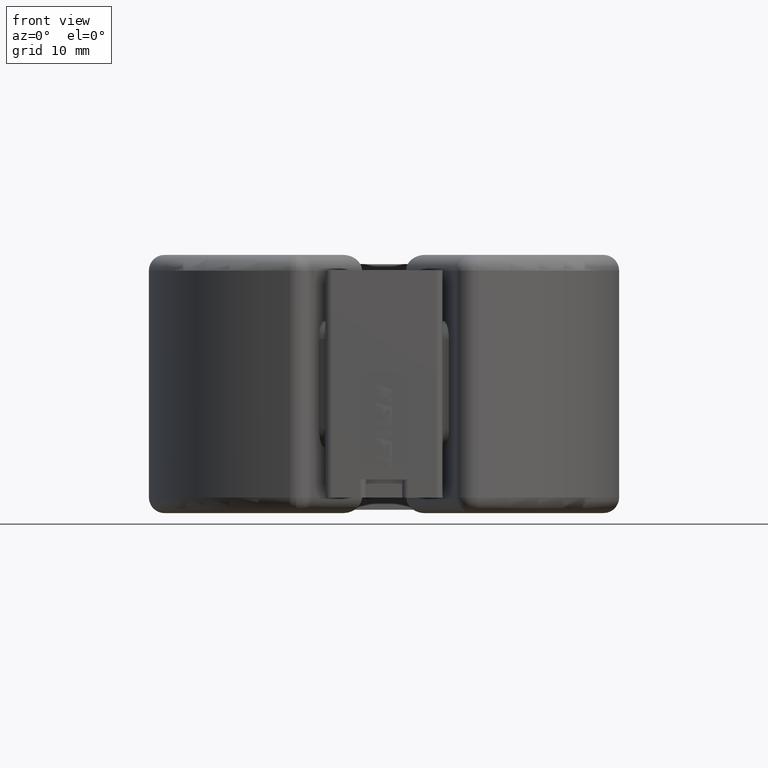
[diagram: clean part render]
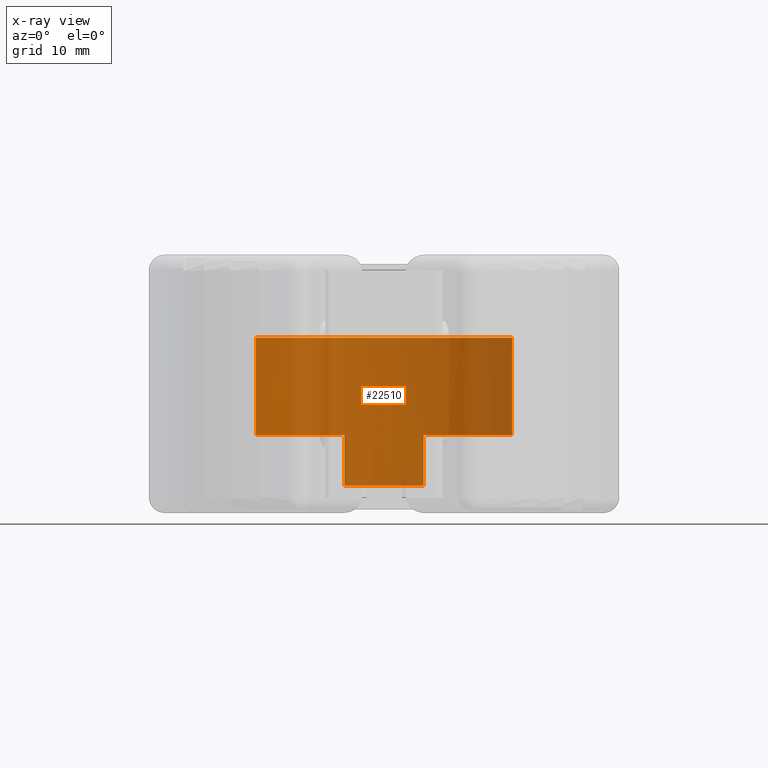
[diagram: x-ray — body ghosted, one internal face saturated and labeled with its STEP entity id]
A machine part, front view, then the same camera in x-ray: the body is ghosted and one INTERNAL B-rep face — a face not visible from any outside direction — is saturated and labeled: STEP entity #22510.
In plain terms, the highlighted cylindrical surface (partial cylindrical patch) has radius 15 mm, axis along (-0, -0, 1).
Its self-contained STEP definition (entity closure, byte-faithful):
#520 = ORIENTED_EDGE ( 'NONE', *, *, #12236, .F. ) ;
#979 = DIRECTION ( 'NONE',  ( 1.000000000000000000, 0.000000000000000000, 0.000000000000000000 ) ) ;
#1172 = CARTESIAN_POINT ( 'NONE',  ( 10.60660171779815464, 10.60660171779827188, 0.9000000000000014655 ) ) ;
#1942 = VECTOR ( 'NONE', #14394, 1000.000000000000000 ) ;
#2141 = CIRCLE ( 'NONE', #21110, 15.00000000000000178 ) ;
#2291 = DIRECTION ( 'NONE',  ( 0.000000000000000000, 0.000000000000000000, 1.000000000000000000 ) ) ;
#2793 = FACE_OUTER_BOUND ( 'NONE', #26671, .T. ) ;
#2992 = CIRCLE ( 'NONE', #27217, 15.00000000000000355 ) ;
#3051 = DIRECTION ( 'NONE',  ( 1.000000000000000000, 0.000000000000000000, 0.000000000000000000 ) ) ;
#3090 = CARTESIAN_POINT ( 'NONE',  ( -10.60660171779816174, 10.60660171779826655, 8.950000000000001066 ) ) ;
#4284 = EDGE_CURVE ( 'NONE', #11640, #13270, #6474, .T. ) ;
#4504 = DIRECTION ( 'NONE',  ( 1.000000000000000000, 0.000000000000000000, 0.000000000000000000 ) ) ;
#5857 = DIRECTION ( 'NONE',  ( 0.000000000000000000, 0.000000000000000000, -1.000000000000000000 ) ) ;
#5979 = CARTESIAN_POINT ( 'NONE',  ( -3.276973031656814861, 14.63767221076473035, -12.94277507092079382 ) ) ;
#6474 = CIRCLE ( 'NONE', #22334, 15.00000000000000178 ) ;
#6552 = ORIENTED_EDGE ( 'NONE', *, *, #24037, .F. ) ;
#6599 = DIRECTION ( 'NONE',  ( -0.000000000000000000, -0.000000000000000000, 1.000000000000000000 ) ) ;
#7049 = CARTESIAN_POINT ( 'NONE',  ( 0.000000000000000000, 0.000000000000000000, 0.9000000000000014655 ) ) ;
#7067 = CARTESIAN_POINT ( 'NONE',  ( 0.000000000000000000, 0.000000000000000000, 0.9000000000000014655 ) ) ;
#7240 = LINE ( 'NONE', #1172, #19942 ) ;
#7306 = AXIS2_PLACEMENT_3D ( 'NONE', #7049, #21668, #3051 ) ;
#7770 = ORIENTED_EDGE ( 'NONE', *, *, #4284, .F. ) ;
#8678 = VECTOR ( 'NONE', #5857, 1000.000000000000000 ) ;
#9558 = ORIENTED_EDGE ( 'NONE', *, *, #9616, .F. ) ;
#9616 = EDGE_CURVE ( 'NONE', #22780, #17913, #2992, .T. ) ;
#9840 = DIRECTION ( 'NONE',  ( 1.000000000000000000, 0.000000000000000000, 0.000000000000000000 ) ) ;
#9908 = CARTESIAN_POINT ( 'NONE',  ( -10.60660171779816174, 10.60660171779826655, 0.9000000000000014655 ) ) ;
#10223 = VERTEX_POINT ( 'NONE', #25656 ) ;
#10236 = ORIENTED_EDGE ( 'NONE', *, *, #10887, .T. ) ;
#10727 = LINE ( 'NONE', #19002, #20591 ) ;
#10887 = EDGE_CURVE ( 'NONE', #14425, #13270, #22262, .T. ) ;
#11024 = DIRECTION ( 'NONE',  ( 1.000000000000000000, 0.000000000000000000, 0.000000000000000000 ) ) ;
#11516 = VERTEX_POINT ( 'NONE', #18976 ) ;
#11640 = VERTEX_POINT ( 'NONE', #17725 ) ;
#11779 = LINE ( 'NONE', #5979, #1942 ) ;
#12236 = EDGE_CURVE ( 'NONE', #11516, #10223, #21002, .T. ) ;
#12242 = VERTEX_POINT ( 'NONE', #13250 ) ;
#13040 = EDGE_CURVE ( 'NONE', #22780, #10223, #10727, .T. ) ;
#13120 = CARTESIAN_POINT ( 'NONE',  ( -3.276973031656814861, 14.63767221076473035, -3.299999999999998046 ) ) ;
#13151 = DIRECTION ( 'NONE',  ( -0.000000000000000000, -0.000000000000000000, 1.000000000000000000 ) ) ;
#13250 = CARTESIAN_POINT ( 'NONE',  ( 10.60660171779815286, 10.60660171779827365, 8.950000000000001066 ) ) ;
#13270 = VERTEX_POINT ( 'NONE', #9908 ) ;
#13768 = EDGE_CURVE ( 'NONE', #12242, #14425, #2141, .T. ) ;
#14394 = DIRECTION ( 'NONE',  ( -0.000000000000000000, -0.000000000000000000, 1.000000000000000000 ) ) ;
#14425 = VERTEX_POINT ( 'NONE', #3090 ) ;
#15531 = ORIENTED_EDGE ( 'NONE', *, *, #13040, .T. ) ;
#15639 = DIRECTION ( 'NONE',  ( 0.000000000000000000, 0.000000000000000000, -1.000000000000000000 ) ) ;
#16184 = DIRECTION ( 'NONE',  ( 0.000000000000000000, 0.000000000000000000, 1.000000000000000000 ) ) ;
#16657 = CARTESIAN_POINT ( 'NONE',  ( 3.276973031656818414, 14.63767221076473035, -3.299999999999998046 ) ) ;
#17204 = AXIS2_PLACEMENT_3D ( 'NONE', #7067, #13151, #979 ) ;
#17725 = CARTESIAN_POINT ( 'NONE',  ( -3.276973031656814417, 14.63767221076473035, 0.9000000000000014655 ) ) ;
#17913 = VERTEX_POINT ( 'NONE', #13120 ) ;
#18976 = CARTESIAN_POINT ( 'NONE',  ( 10.60660171779815464, 10.60660171779827188, 0.9000000000000014655 ) ) ;
#19002 = CARTESIAN_POINT ( 'NONE',  ( 3.276973031656818414, 14.63767221076473035, -12.94277507092079382 ) ) ;
#19023 = CARTESIAN_POINT ( 'NONE',  ( 0.000000000000000000, 0.000000000000000000, 0.9000000000000014655 ) ) ;
#19030 = ORIENTED_EDGE ( 'NONE', *, *, #25730, .F. ) ;
#19942 = VECTOR ( 'NONE', #15639, 1000.000000000000000 ) ;
#20591 = VECTOR ( 'NONE', #6599, 1000.000000000000000 ) ;
#21002 = CIRCLE ( 'NONE', #7306, 15.00000000000000178 ) ;
#21110 = AXIS2_PLACEMENT_3D ( 'NONE', #26546, #16184, #9840 ) ;
#21645 = DIRECTION ( 'NONE',  ( 0.000000000000000000, 0.000000000000000000, 1.000000000000000000 ) ) ;
#21668 = DIRECTION ( 'NONE',  ( 0.000000000000000000, 0.000000000000000000, 1.000000000000000000 ) ) ;
#22262 = LINE ( 'NONE', #22829, #8678 ) ;
#22334 = AXIS2_PLACEMENT_3D ( 'NONE', #19023, #21645, #11024 ) ;
#22510 = ADVANCED_FACE ( 'NONE', ( #2793 ), #25997, .F. ) ;
#22780 = VERTEX_POINT ( 'NONE', #16657 ) ;
#22829 = CARTESIAN_POINT ( 'NONE',  ( -10.60660171779815997, 10.60660171779826477, 0.9000000000000014655 ) ) ;
#22831 = ORIENTED_EDGE ( 'NONE', *, *, #13768, .T. ) ;
#23804 = CARTESIAN_POINT ( 'NONE',  ( 0.000000000000000000, 0.000000000000000000, -3.299999999999998046 ) ) ;
#24037 = EDGE_CURVE ( 'NONE', #12242, #11516, #7240, .T. ) ;
#25656 = CARTESIAN_POINT ( 'NONE',  ( 3.276973031656818414, 14.63767221076473035, 0.9000000000000014655 ) ) ;
#25730 = EDGE_CURVE ( 'NONE', #17913, #11640, #11779, .T. ) ;
#25997 = CYLINDRICAL_SURFACE ( 'NONE', #17204, 15.00000000000000178 ) ;
#26546 = CARTESIAN_POINT ( 'NONE',  ( 0.000000000000000000, 0.000000000000000000, 8.950000000000001066 ) ) ;
#26671 = EDGE_LOOP ( 'NONE', ( #22831, #10236, #7770, #19030, #9558, #15531, #520, #6552 ) ) ;
#27217 = AXIS2_PLACEMENT_3D ( 'NONE', #23804, #2291, #4504 ) ;